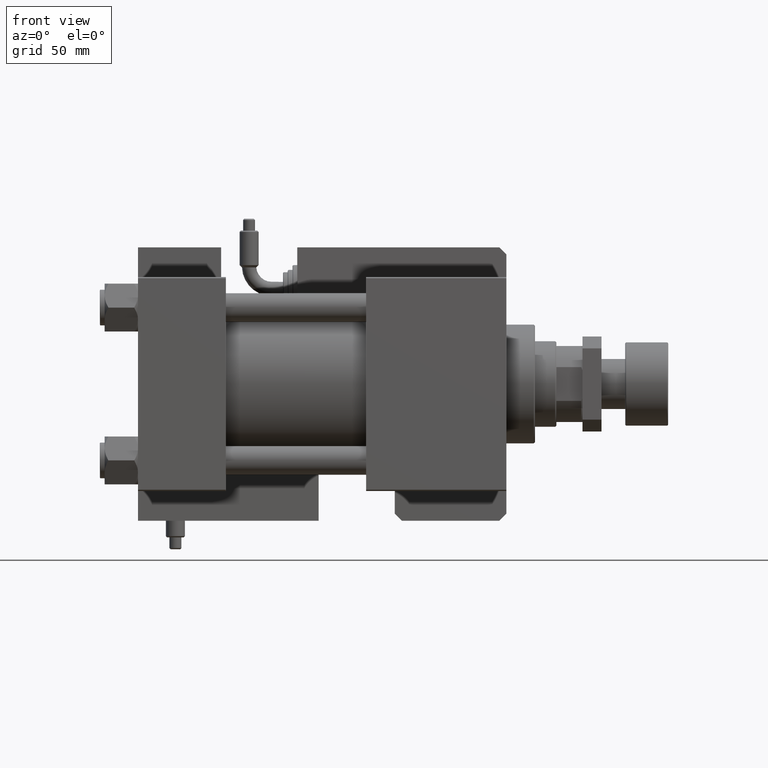
[diagram: clean part render]
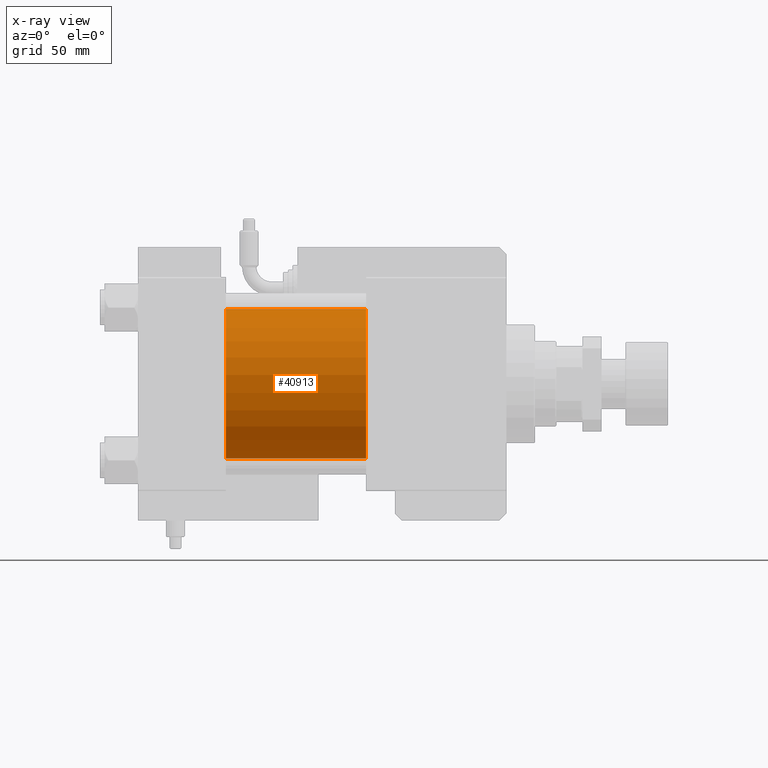
[diagram: x-ray — body ghosted, one internal face saturated and labeled with its STEP entity id]
A machine part, front view, then the same camera in x-ray: the body is ghosted and one INTERNAL B-rep face — a face not visible from any outside direction — is saturated and labeled: STEP entity #40913.
In plain terms, the highlighted cylindrical surface (partial cylindrical patch) has radius 31.5 mm, axis along (-1, -0, -0).
Its self-contained STEP definition (entity closure, byte-faithful):
#87 = AXIS2_PLACEMENT_3D ( 'NONE', #20649, #7176, #47012 ) ;
#791 = CARTESIAN_POINT ( 'NONE',  ( 96.00000000000000000, 1.255552203348951850E-15, -31.50000000000000000 ) ) ;
#2919 = CIRCLE ( 'NONE', #87, 31.50000000000000000 ) ;
#5840 = DIRECTION ( 'NONE',  ( 1.000000000000000000, 0.000000000000000000, 0.000000000000000000 ) ) ;
#6422 = DIRECTION ( 'NONE',  ( 0.000000000000000000, 0.000000000000000000, -1.000000000000000000 ) ) ;
#6742 = CARTESIAN_POINT ( 'NONE',  ( 96.00000000000000000, -2.602085213965210642E-15, 0.000000000000000000 ) ) ;
#7176 = DIRECTION ( 'NONE',  ( 1.000000000000000000, 0.000000000000000000, 0.000000000000000000 ) ) ;
#10571 = VERTEX_POINT ( 'NONE', #29625 ) ;
#10958 = VECTOR ( 'NONE', #30683, 1000.000000000000000 ) ;
#15429 = CIRCLE ( 'NONE', #56555, 31.50000000000000000 ) ;
#16510 = VECTOR ( 'NONE', #53266, 1000.000000000000000 ) ;
#20649 = CARTESIAN_POINT ( 'NONE',  ( 37.00000000000000000, -2.602085213965210642E-15, 0.000000000000000000 ) ) ;
#24610 = DIRECTION ( 'NONE',  ( -1.000000000000000000, -0.000000000000000000, -0.000000000000000000 ) ) ;
#28710 = FACE_OUTER_BOUND ( 'NONE', #36254, .T. ) ;
#29625 = CARTESIAN_POINT ( 'NONE',  ( 37.00000000000000000, -2.602085213965210642E-15, 31.50000000000000000 ) ) ;
#29634 = ORIENTED_EDGE ( 'NONE', *, *, #46418, .F. ) ;
#29663 = EDGE_CURVE ( 'NONE', #40219, #39393, #15429, .T. ) ;
#30018 = ORIENTED_EDGE ( 'NONE', *, *, #33102, .T. ) ;
#30219 = CARTESIAN_POINT ( 'NONE',  ( 37.00000000000000000, 1.255552203348951850E-15, -31.50000000000000000 ) ) ;
#30683 = DIRECTION ( 'NONE',  ( -1.000000000000000000, -0.000000000000000000, -0.000000000000000000 ) ) ;
#32128 = CARTESIAN_POINT ( 'NONE',  ( 96.00000000000000000, -2.602085213965210642E-15, 31.50000000000000000 ) ) ;
#33102 = EDGE_CURVE ( 'NONE', #39393, #49721, #49164, .T. ) ;
#36254 = EDGE_LOOP ( 'NONE', ( #39351, #30018, #29634, #42027 ) ) ;
#37592 = EDGE_CURVE ( 'NONE', #40219, #10571, #43562, .T. ) ;
#39351 = ORIENTED_EDGE ( 'NONE', *, *, #29663, .T. ) ;
#39393 = VERTEX_POINT ( 'NONE', #791 ) ;
#39759 = CARTESIAN_POINT ( 'NONE',  ( 96.00000000000000000, -2.602085213965210642E-15, 31.50000000000000000 ) ) ;
#40219 = VERTEX_POINT ( 'NONE', #32128 ) ;
#40913 = ADVANCED_FACE ( 'NONE', ( #28710 ), #51253, .F. ) ;
#42027 = ORIENTED_EDGE ( 'NONE', *, *, #37592, .F. ) ;
#42431 = CARTESIAN_POINT ( 'NONE',  ( 96.00000000000000000, -2.602085213965210642E-15, 0.000000000000000000 ) ) ;
#42891 = AXIS2_PLACEMENT_3D ( 'NONE', #6742, #24610, #52676 ) ;
#43562 = LINE ( 'NONE', #39759, #10958 ) ;
#46418 = EDGE_CURVE ( 'NONE', #10571, #49721, #2919, .T. ) ;
#47012 = DIRECTION ( 'NONE',  ( 0.000000000000000000, 0.000000000000000000, -1.000000000000000000 ) ) ;
#49164 = LINE ( 'NONE', #53840, #16510 ) ;
#49721 = VERTEX_POINT ( 'NONE', #30219 ) ;
#51253 = CYLINDRICAL_SURFACE ( 'NONE', #42891, 31.50000000000000000 ) ;
#52676 = DIRECTION ( 'NONE',  ( 0.000000000000000000, 0.000000000000000000, 1.000000000000000000 ) ) ;
#53266 = DIRECTION ( 'NONE',  ( -1.000000000000000000, -0.000000000000000000, -0.000000000000000000 ) ) ;
#53840 = CARTESIAN_POINT ( 'NONE',  ( 96.00000000000000000, 1.255552203348951850E-15, -31.50000000000000000 ) ) ;
#56555 = AXIS2_PLACEMENT_3D ( 'NONE', #42431, #5840, #6422 ) ;